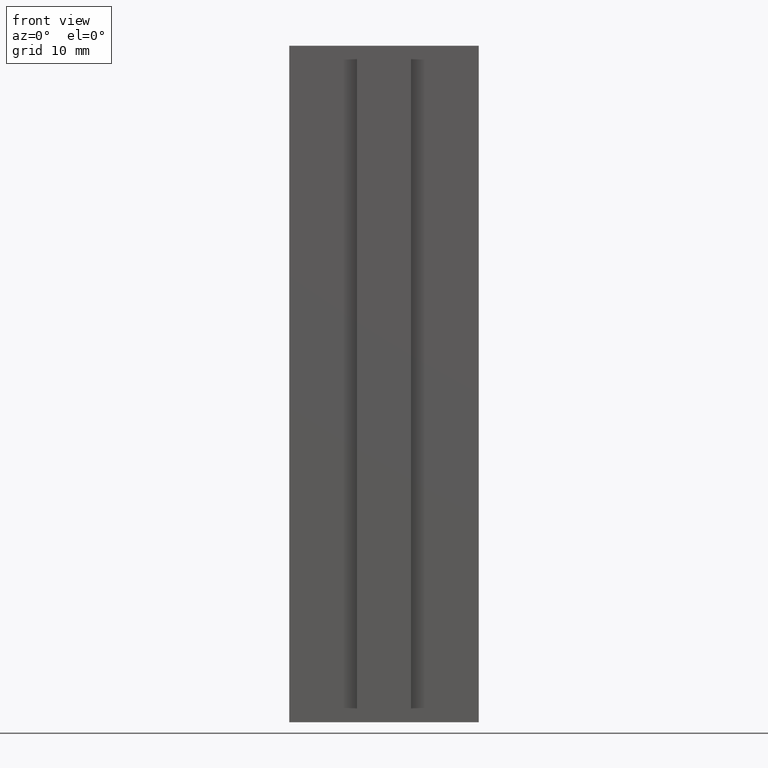
[diagram: clean part render]
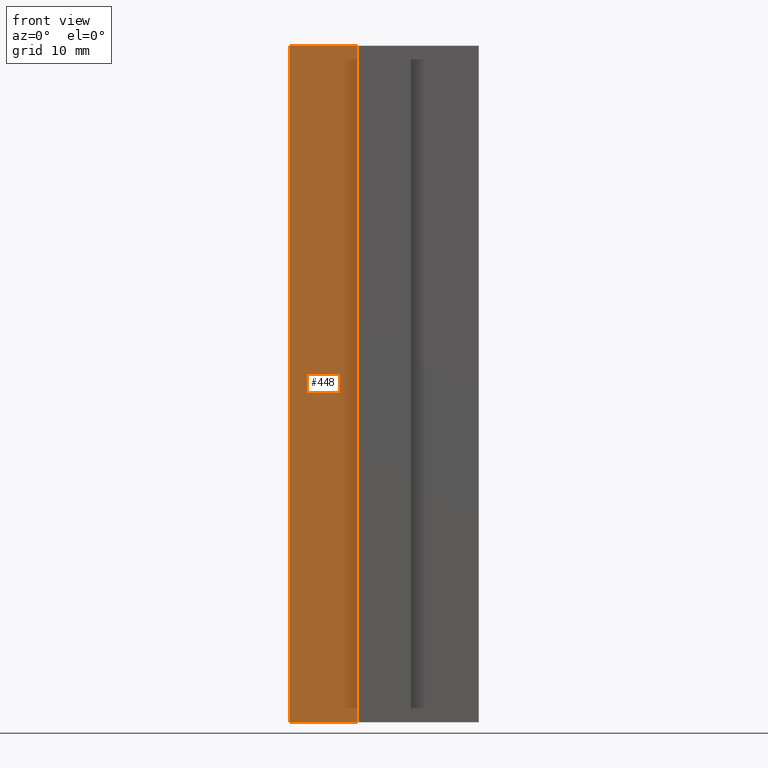
[diagram: same view with one face highlighted and labeled with its STEP entity id]
A machine part, front view. The second image highlights one B-rep face of the part: STEP entity #448.
In plain terms, the highlighted planar face has unit normal (0, -1, 0).
Its self-contained STEP definition (entity closure, byte-faithful):
#36=FACE_OUTER_BOUND('',#61,.T.);
#61=EDGE_LOOP('',(#313,#314,#315,#316));
#95=LINE('',#681,#150);
#97=LINE('',#685,#152);
#98=LINE('',#687,#153);
#99=LINE('',#688,#154);
#150=VECTOR('',#549,10.);
#152=VECTOR('',#553,10.);
#153=VECTOR('',#554,10.);
#154=VECTOR('',#555,10.);
#204=VERTEX_POINT('',#678);
#205=VERTEX_POINT('',#680);
#206=VERTEX_POINT('',#684);
#207=VERTEX_POINT('',#686);
#247=EDGE_CURVE('',#205,#204,#95,.T.);
#249=EDGE_CURVE('',#204,#206,#97,.T.);
#250=EDGE_CURVE('',#207,#206,#98,.T.);
#251=EDGE_CURVE('',#207,#205,#99,.T.);
#313=ORIENTED_EDGE('',*,*,#249,.T.);
#314=ORIENTED_EDGE('',*,*,#250,.F.);
#315=ORIENTED_EDGE('',*,*,#251,.T.);
#316=ORIENTED_EDGE('',*,*,#247,.T.);
#427=PLANE('',#497);
#448=ADVANCED_FACE('',(#36),#427,.T.);
#497=AXIS2_PLACEMENT_3D('',#683,#551,#552);
#549=DIRECTION('',(0.,0.,1.));
#551=DIRECTION('center_axis',(1.66533453693773E-16,-1.,0.));
#552=DIRECTION('ref_axis',(0.,0.,-1.));
#553=DIRECTION('',(-1.,-1.66533453693773E-16,0.));
#554=DIRECTION('',(0.,0.,1.));
#555=DIRECTION('',(1.,1.66533453693773E-16,0.));
#678=CARTESIAN_POINT('',(-17.8756867600048,3.00251171274873,100.));
#680=CARTESIAN_POINT('',(-17.8756867600048,3.00251171274873,0.));
#681=CARTESIAN_POINT('',(-17.8756867600048,3.00251171274873,0.));
#683=CARTESIAN_POINT('Origin',(-17.8756867600048,3.00251171274873,0.));
#684=CARTESIAN_POINT('',(-27.8756867600048,3.00251171274873,100.));
#685=CARTESIAN_POINT('',(-27.8756867600048,3.00251171274873,100.));
#686=CARTESIAN_POINT('',(-27.8756867600048,3.00251171274873,0.));
#687=CARTESIAN_POINT('',(-27.8756867600048,3.00251171274873,0.));
#688=CARTESIAN_POINT('',(-27.8756867600048,3.00251171274873,0.));